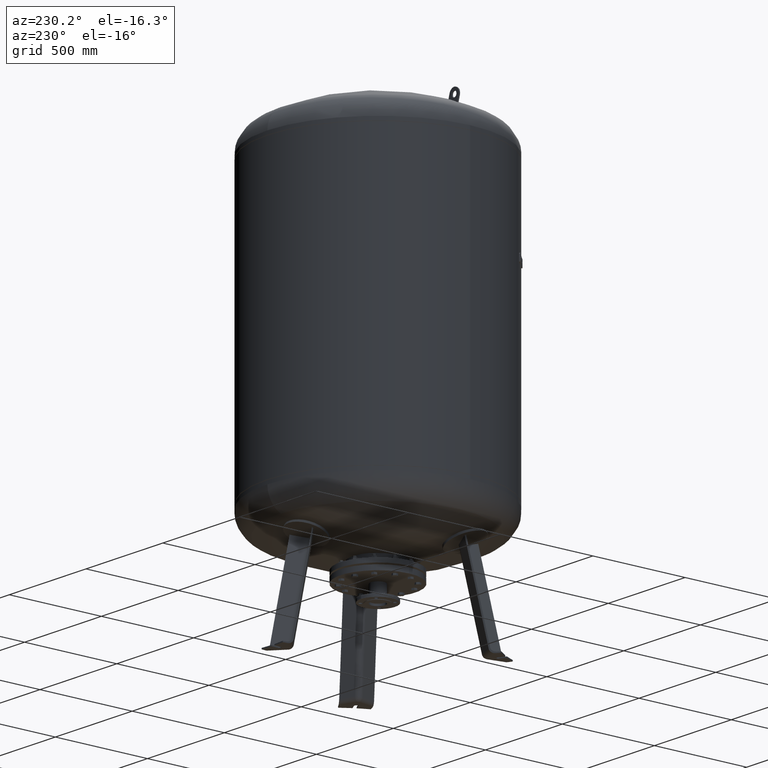
[diagram: clean part render]
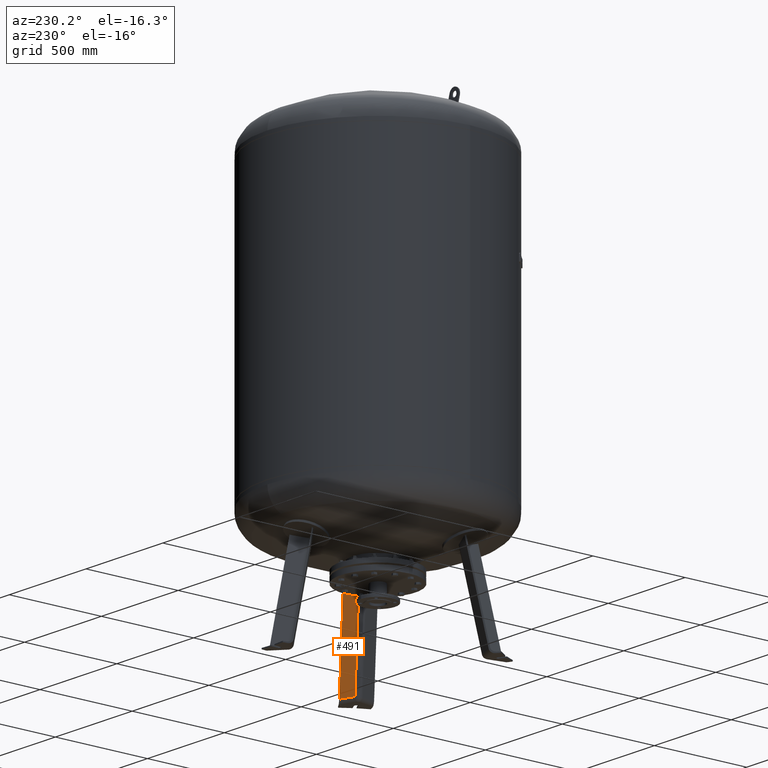
[diagram: same view with one face highlighted and labeled with its STEP entity id]
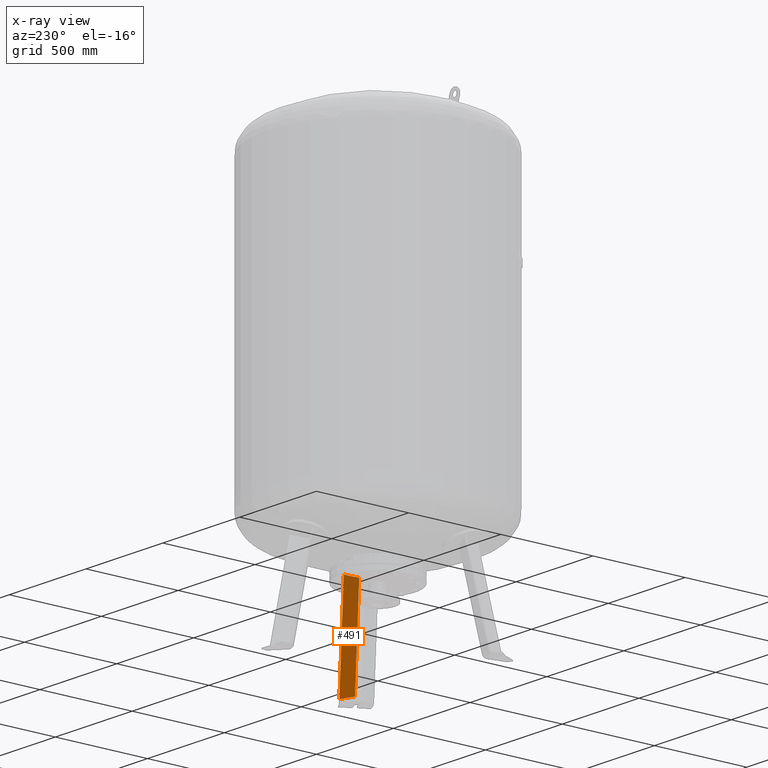
[diagram: x-ray of the same camera — body ghosted, the highlighted face saturated]
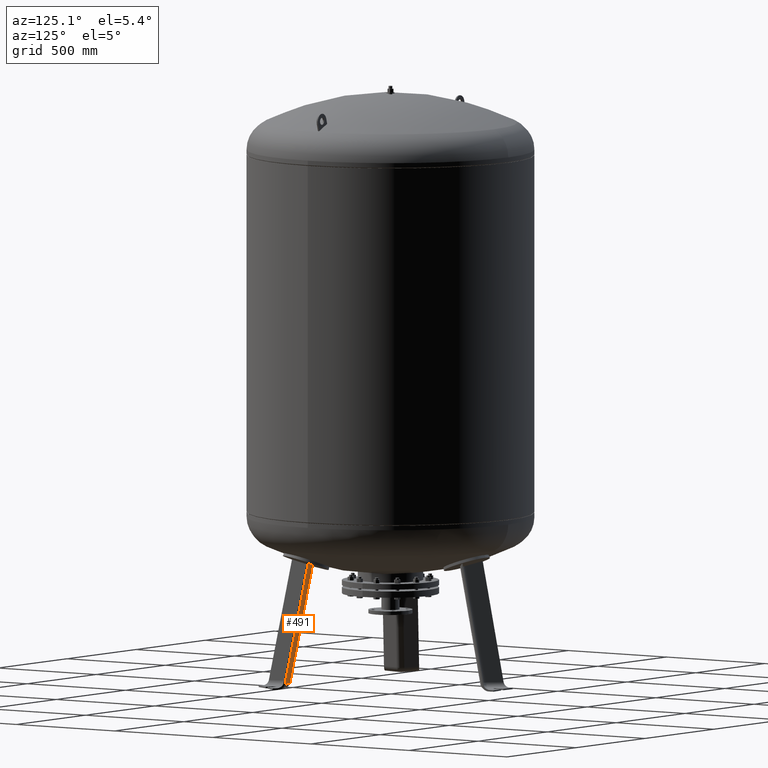
[diagram: same view with one face highlighted and labeled with its STEP entity id]
A machine part, auxiliary view. The second image highlights one B-rep face of the part: STEP entity #491.
The next image is the same camera in x-ray: the body ghosted, the highlighted face saturated — about 12% of this face is hidden behind the body in this view.
A second angle (auxiliary view) of the same face is appended — the face is thin or edge-on in the first view.
In plain terms, the highlighted planar face has unit normal (-0.3243, 0.9325, -0.1588).
Its self-contained STEP definition (entity closure, byte-faithful):
#206=CARTESIAN_POINT('',(414.642004680756660,-220.760904562808290,21.029948423057281));
#207=VERTEX_POINT('',#206);
#274=CARTESIAN_POINT('',(392.374658683063670,-141.667125242979440,530.964625467244790));
#275=VERTEX_POINT('',#274);
#283=CARTESIAN_POINT('',(325.136551475685110,-169.084907060920670,507.262855992482800));
#284=VERTEX_POINT('',#283);
#285=CARTESIAN_POINT('',(325.136551475685110,-169.084907060920670,507.262855992482800));
#286=CARTESIAN_POINT('',(328.423946263451910,-167.776322092609950,508.234229947279740));
#287=CARTESIAN_POINT('',(331.713596554965420,-166.461482115265910,509.237729410370950));
#288=CARTESIAN_POINT('',(341.733731757143350,-162.441610993813920,512.381986610263310));
#289=CARTESIAN_POINT('',(348.471166446124300,-159.718320576899060,514.615776682244130));
#290=CARTESIAN_POINT('',(367.608973657149760,-151.930204939631070,521.269541988922130));
#291=CARTESIAN_POINT('',(380.014493063672490,-146.819260764282600,525.949831965369190));
#292=CARTESIAN_POINT('',(392.374658683063670,-141.667125242979440,530.964625467244790));
#293=B_SPLINE_CURVE_WITH_KNOTS('',3,(#285,#286,#287,#288,#289,#290,#291,#292),.UNSPECIFIED.,.F.,.U.,(4,2,2,4),(5.453253502265779,6.515864870681246,8.687819827574995,12.681292855444173),.UNSPECIFIED.);
#294=EDGE_CURVE('',#284,#275,#293,.T.);
#449=CARTESIAN_POINT('',(325.136551475685110,-169.084907060920670,507.262855992482800));
#450=DIRECTION('',(0.180056805991956,-0.103955845408880,-0.978147600733805));
#451=VECTOR('',#450,497.095639967479310);
#452=LINE('',#449,#451);
#453=EDGE_CURVE('',#284,#207,#452,.T.);
#468=CARTESIAN_POINT('',(406.016002290386950,-234.413448217650820,-41.527282742766886));
#469=DIRECTION('',(-0.324282864533177,0.932535537409927,-0.158802063077709));
#470=DIRECTION('',(0.180056805991956,-0.103955845408880,-0.978147600733806));
#471=AXIS2_PLACEMENT_3D('',#468,#469,#470);
#472=PLANE('',#471);
#473=CARTESIAN_POINT('',(486.243118968847280,-195.862106057392420,21.029948423057284));
#474=VERTEX_POINT('',#473);
#475=CARTESIAN_POINT('',(486.243118968847280,-195.862106057392420,21.029948423057284));
#476=DIRECTION('',(-0.180056805991956,0.103955845408880,0.978147600733806));
#477=VECTOR('',#476,521.326921071661220);
#478=LINE('',#475,#477);
#479=EDGE_CURVE('',#474,#275,#478,.T.);
#480=ORIENTED_EDGE('',*,*,#479,.F.);
#481=CARTESIAN_POINT('',(414.642004680756660,-220.760904562808290,21.029948423057281));
#482=DIRECTION('',(0.944521094592691,0.328450760190053,4.686537E-017));
#483=VECTOR('',#482,75.806792138366575);
#484=LINE('',#481,#483);
#485=EDGE_CURVE('',#207,#474,#484,.T.);
#486=ORIENTED_EDGE('',*,*,#485,.F.);
#487=ORIENTED_EDGE('',*,*,#453,.F.);
#488=ORIENTED_EDGE('',*,*,#294,.T.);
#489=EDGE_LOOP('',(#480,#486,#487,#488));
#490=FACE_OUTER_BOUND('',#489,.T.);
#491=ADVANCED_FACE('',(#490),#472,.T.);